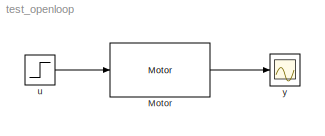
MODEL test_openloop
KIND model
BLOCK [Reference] Motor  REF=DCmotor_library/Motor
  Ports = [1, 1]
  SID = 1
  SourceBlock = DCmotor_library/Motor
  motoridinput = 1
  name_signal = Velocity
  ts = 10
BLOCK [Step] u
  SID = 2
  SampleTime = 0.01
BLOCK [Scope] y
  DataFormat = StructureWithTime
  Floating = off
  LimitDataPoints = off
  NumInputPorts = 1
  Ports = [1]
  SID = 3
  SampleTime = 0
  YMax = 37.5
  YMin = -2.5
LINE Motor:1 -> y:1
LINE u:1 -> Motor:1
